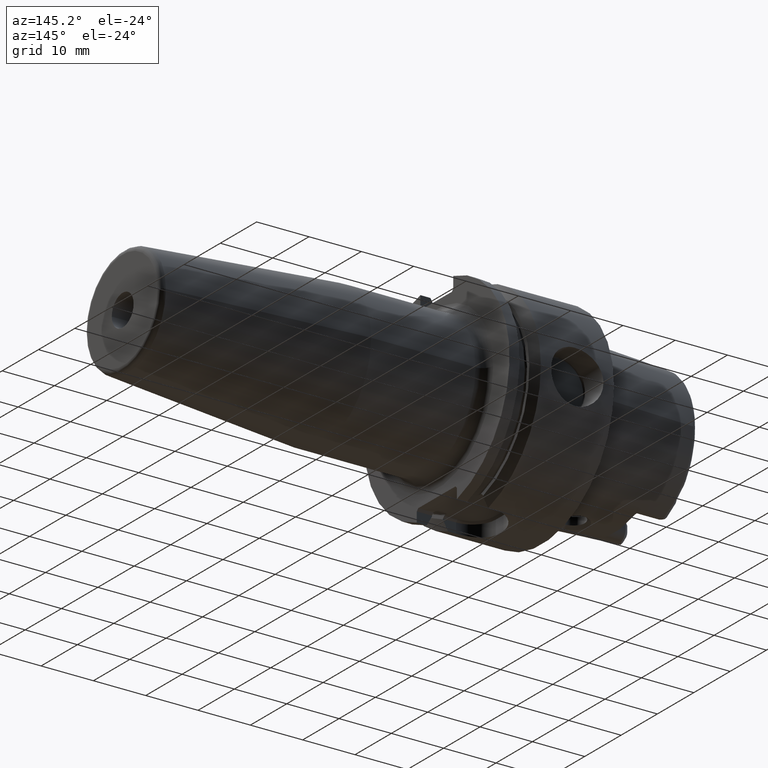
[diagram: clean part render]
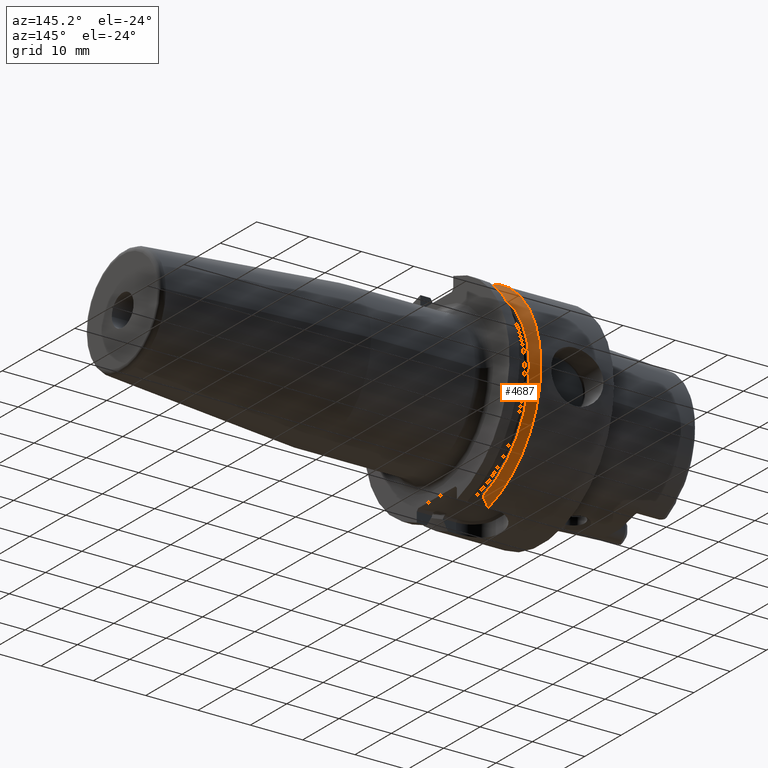
[diagram: same view with one face highlighted and labeled with its STEP entity id]
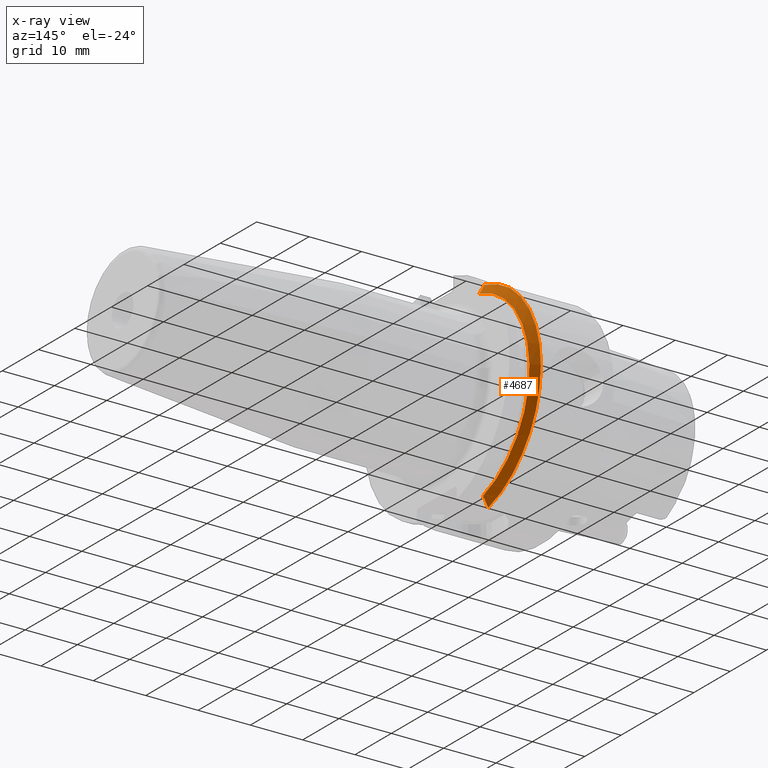
[diagram: x-ray of the same camera — body ghosted, the highlighted face saturated]
A machine part, auxiliary view. The second image highlights one B-rep face of the part: STEP entity #4687.
The next image is the same camera in x-ray: the body ghosted, the highlighted face saturated — about 0% of this face is hidden behind the body in this view.
In plain terms, the highlighted conical surface has half-angle 60 deg.
Its self-contained STEP definition (entity closure, byte-faithful):
#886=CARTESIAN_POINT('',(1.396484030111E1,0.E0,0.E0));
#887=DIRECTION('',(1.E0,0.E0,0.E0));
#888=DIRECTION('',(0.E0,1.E0,0.E0));
#889=AXIS2_PLACEMENT_3D('',#886,#887,#888);
#1123=CARTESIAN_POINT('',(1.396484030111E1,0.E0,0.E0));
#1124=DIRECTION('',(1.E0,0.E0,0.E0));
#1125=DIRECTION('',(0.E0,2.75875E-1,-9.611935207725E-1));
#1126=AXIS2_PLACEMENT_3D('',#1123,#1124,#1125);
#1376=CARTESIAN_POINT('',(1.396484030111E1,5.5175E0,-1.922387041545E1));
#1377=CARTESIAN_POINT('',(1.408007416075E1,5.5175E0,-1.901622138812E1));
#1378=CARTESIAN_POINT('',(1.430762367067E1,5.5175E0,-1.860566967499E1));
#1379=CARTESIAN_POINT('',(1.464010814609E1,5.5175E0,-1.800420325575E1));
#1380=CARTESIAN_POINT('',(1.485600540526E1,5.5175E0,-1.761253540924E1));
#1381=CARTESIAN_POINT('',(1.49625E1,5.5175E0,-1.741904925329E1));
#1406=CARTESIAN_POINT('',(1.49625E1,0.E0,0.E0));
#1407=DIRECTION('',(1.E0,0.E0,0.E0));
#1408=DIRECTION('',(0.E0,3.019647099833E-1,-9.533191039336E-1));
#1409=AXIS2_PLACEMENT_3D('',#1406,#1407,#1408);
#1424=CARTESIAN_POINT('',(1.49625E1,4.5145E0,1.770551814798E1));
#1425=CARTESIAN_POINT('',(1.485552884249E1,4.5145E0,1.789672560819E1));
#1426=CARTESIAN_POINT('',(1.463899660997E1,4.5145E0,1.828339173494E1));
#1427=CARTESIAN_POINT('',(1.430649088821E1,4.5145E0,1.887606128139E1));
#1428=CARTESIAN_POINT('',(1.407958891288E1,4.5145E0,1.927980537228E1));
#1429=CARTESIAN_POINT('',(1.396484030111E1,4.5145E0,1.948382123070E1));
#2870=CARTESIAN_POINT('',(1.49625E1,4.5145E0,1.770551814798E1));
#2872=VERTEX_POINT('',#2870);
#2878=VERTEX_POINT('',#1429);
#2880=CARTESIAN_POINT('',(1.49625E1,5.5175E0,-1.741904925329E1));
#2882=VERTEX_POINT('',#2880);
#2888=VERTEX_POINT('',#1376);
#3050=CARTESIAN_POINT('',(1.396484030111E1,2.E1,0.E0));
#3051=VERTEX_POINT('',#3050);
#4674=CARTESIAN_POINT('',(1.446367015055E1,0.E0,0.E0));
#4675=DIRECTION('',(-1.E0,0.E0,0.E0));
#4676=DIRECTION('',(0.E0,1.E0,0.E0));
#4677=AXIS2_PLACEMENT_3D('',#4674,#4675,#4676);
#4678=CONICAL_SURFACE('',#4677,1.913600135643E1,6.E1);
#4679=ORIENTED_EDGE('',*,*,#4168,.F.);
#4680=ORIENTED_EDGE('',*,*,#4300,.F.);
#4681=ORIENTED_EDGE('',*,*,#4651,.T.);
#4682=ORIENTED_EDGE('',*,*,#4464,.T.);
#4684=ORIENTED_EDGE('',*,*,#4683,.T.);
#4685=EDGE_LOOP('',(#4679,#4680,#4681,#4682,#4684));
#4686=FACE_OUTER_BOUND('',#4685,.F.);
#4687=ADVANCED_FACE('',(#4686),#4678,.T.);
#890=CIRCLE('',#889,2.E1);
#1127=CIRCLE('',#1126,2.E1);
#1382=B_SPLINE_CURVE_WITH_KNOTS('',3,(#1376,#1377,#1378,#1379,#1380,#1381),
.UNSPECIFIED.,.F.,.F.,(4,1,1,4),(0.E0,3.333333333333E-1,6.666666666667E-1,1.E0),
.UNSPECIFIED.);
#1410=CIRCLE('',#1409,1.827200271285E1);
#1430=B_SPLINE_CURVE_WITH_KNOTS('',3,(#1424,#1425,#1426,#1427,#1428,#1429),
.UNSPECIFIED.,.F.,.F.,(4,1,1,4),(0.E0,3.333333333333E-1,6.666666666667E-1,1.E0),
.UNSPECIFIED.);
#4168=EDGE_CURVE('',#3051,#2878,#890,.T.);
#4300=EDGE_CURVE('',#2888,#3051,#1127,.T.);
#4464=EDGE_CURVE('',#2882,#2872,#1410,.T.);
#4651=EDGE_CURVE('',#2888,#2882,#1382,.T.);
#4683=EDGE_CURVE('',#2872,#2878,#1430,.T.);